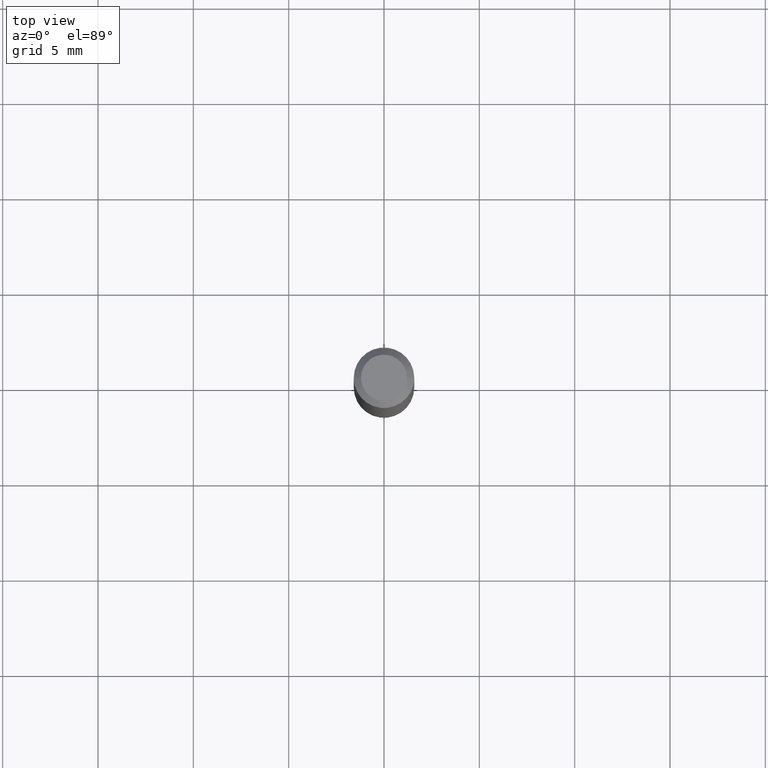
[diagram: clean part render]
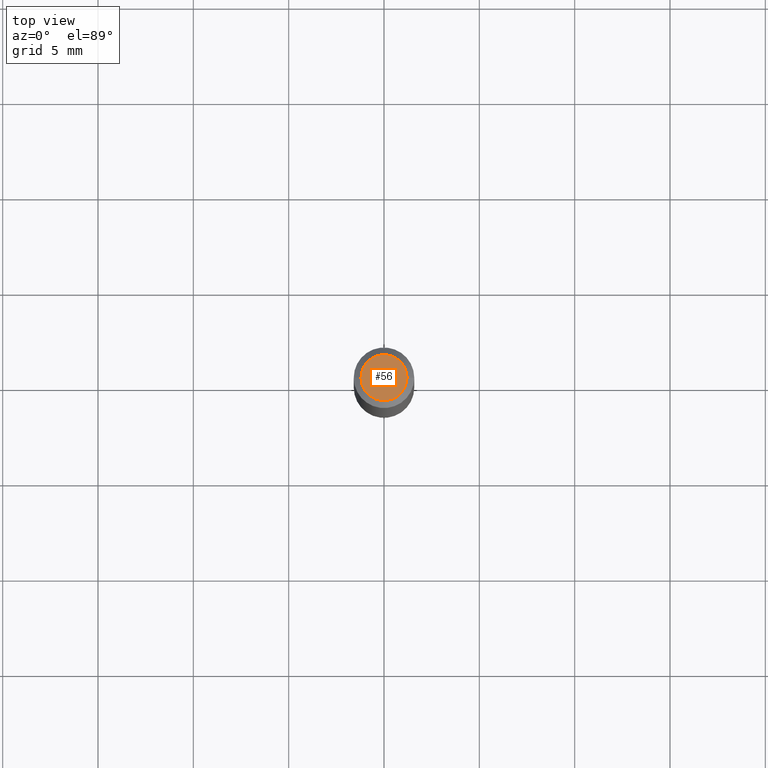
[diagram: same view with one face highlighted and labeled with its STEP entity id]
A machine part, top view. The second image highlights one B-rep face of the part: STEP entity #56.
In plain terms, the highlighted planar face has unit normal (0, -0, -1).
Its self-contained STEP definition (entity closure, byte-faithful):
#34 = ORIENTED_EDGE ( 'NONE', *, *, #287, .T. ) ;
#48 = CARTESIAN_POINT ( 'NONE',  ( -0.04750000000000000749, 3.578768372314221353E-16, 2.731847993664239060E-16 ) ) ;
#56 = ADVANCED_FACE ( 'NONE', ( #262 ), #423, .F. ) ;
#67 = DIRECTION ( 'NONE',  ( -2.445468806185136597E-29, 3.491481338843145583E-15, 1.000000000000000000 ) ) ;
#70 = CARTESIAN_POINT ( 'NONE',  ( -6.680649051745406845E-45, 9.538196290434862081E-31, 2.731847993664263218E-16 ) ) ;
#184 = CIRCLE ( 'NONE', #242, 0.04750000000000000749 ) ;
#194 = AXIS2_PLACEMENT_3D ( 'NONE', #354, #278, #400 ) ;
#197 = AXIS2_PLACEMENT_3D ( 'NONE', #508, #67, #433 ) ;
#210 = CARTESIAN_POINT ( 'NONE',  ( 0.04750000000000000749, -4.035134999187568762E-16, 2.731847993664288856E-16 ) ) ;
#236 = DIRECTION ( 'NONE',  ( -2.445468806185136597E-29, 3.491481338843145583E-15, 1.000000000000000000 ) ) ;
#242 = AXIS2_PLACEMENT_3D ( 'NONE', #70, #236, #394 ) ;
#262 = FACE_OUTER_BOUND ( 'NONE', #415, .T. ) ;
#265 = ORIENTED_EDGE ( 'NONE', *, *, #306, .T. ) ;
#278 = DIRECTION ( 'NONE',  ( 2.438088387897960049E-29, -3.491481338843145188E-15, -1.000000000000000000 ) ) ;
#287 = EDGE_CURVE ( 'NONE', #372, #444, #315, .T. ) ;
#306 = EDGE_CURVE ( 'NONE', #444, #372, #184, .T. ) ;
#315 = CIRCLE ( 'NONE', #197, 0.04750000000000000749 ) ;
#354 = CARTESIAN_POINT ( 'NONE',  ( 3.316907271900976589E-16, 0.04750000000000000749, -2.925296391183627249E-17 ) ) ;
#372 = VERTEX_POINT ( 'NONE', #210 ) ;
#394 = DIRECTION ( 'NONE',  ( 1.000000000000000000, -6.982962677686266711E-15, 4.852736867747365086E-29 ) ) ;
#400 = DIRECTION ( 'NONE',  ( -1.000000000000000000, 6.982962677686265922E-15, -4.876176775795935793E-29 ) ) ;
#415 = EDGE_LOOP ( 'NONE', ( #265, #34 ) ) ;
#423 = PLANE ( 'NONE',  #194 ) ;
#433 = DIRECTION ( 'NONE',  ( 1.000000000000000000, -6.982962677686266711E-15, 4.852736867747365086E-29 ) ) ;
#444 = VERTEX_POINT ( 'NONE', #48 ) ;
#508 = CARTESIAN_POINT ( 'NONE',  ( -6.680649051745406845E-45, 9.538196290434862081E-31, 2.731847993664263218E-16 ) ) ;